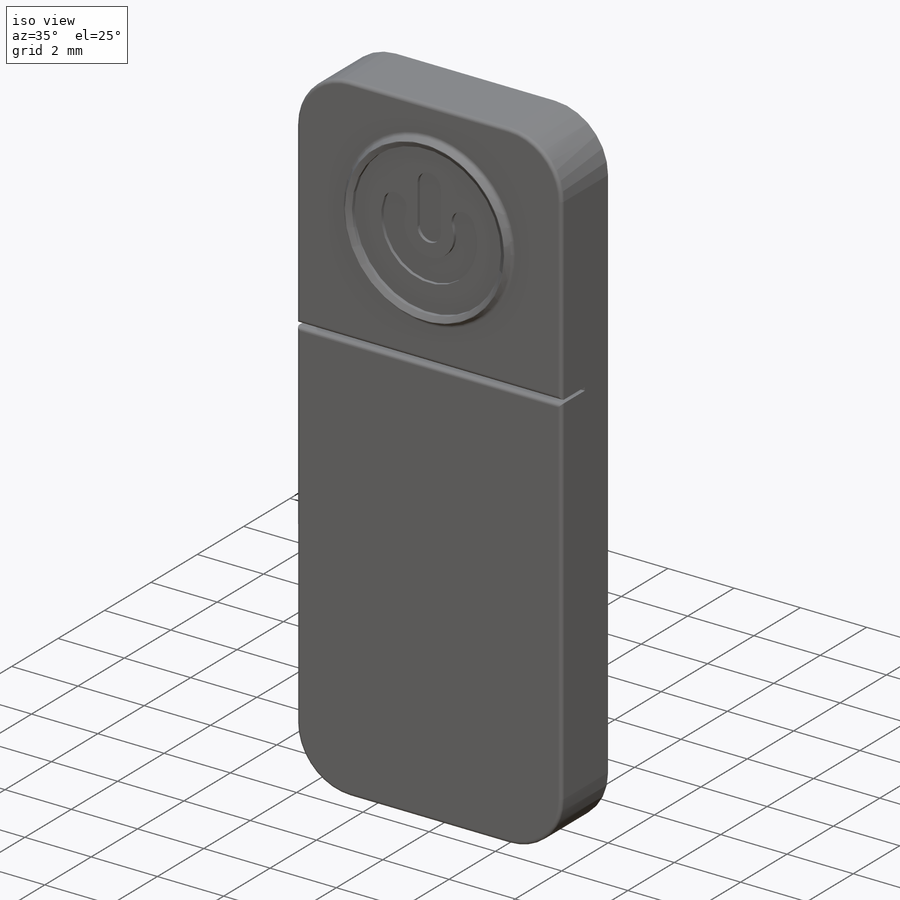
[diagram: iso view]
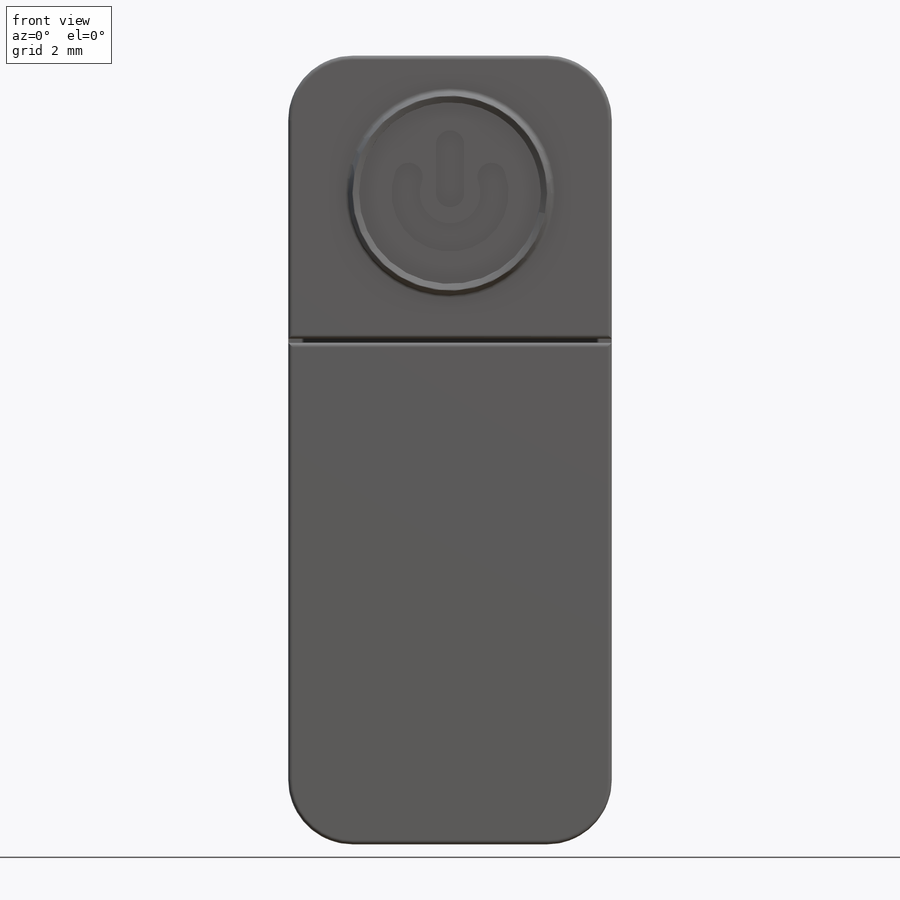
[diagram: front view]
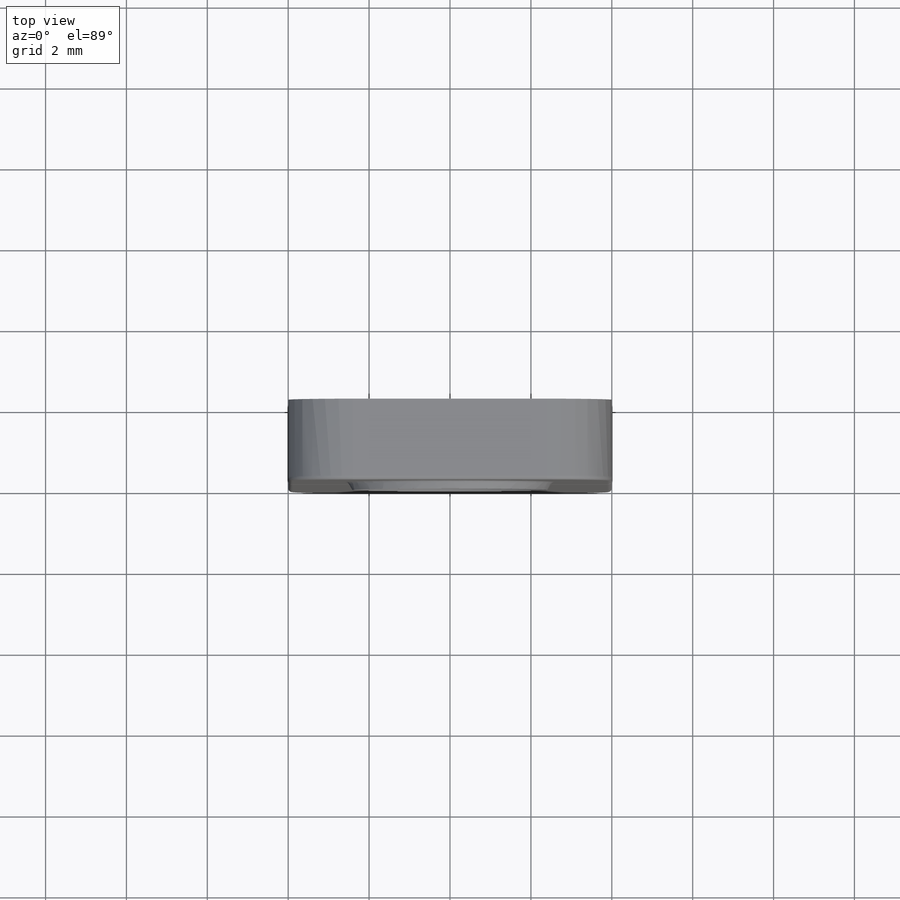
[diagram: top view]
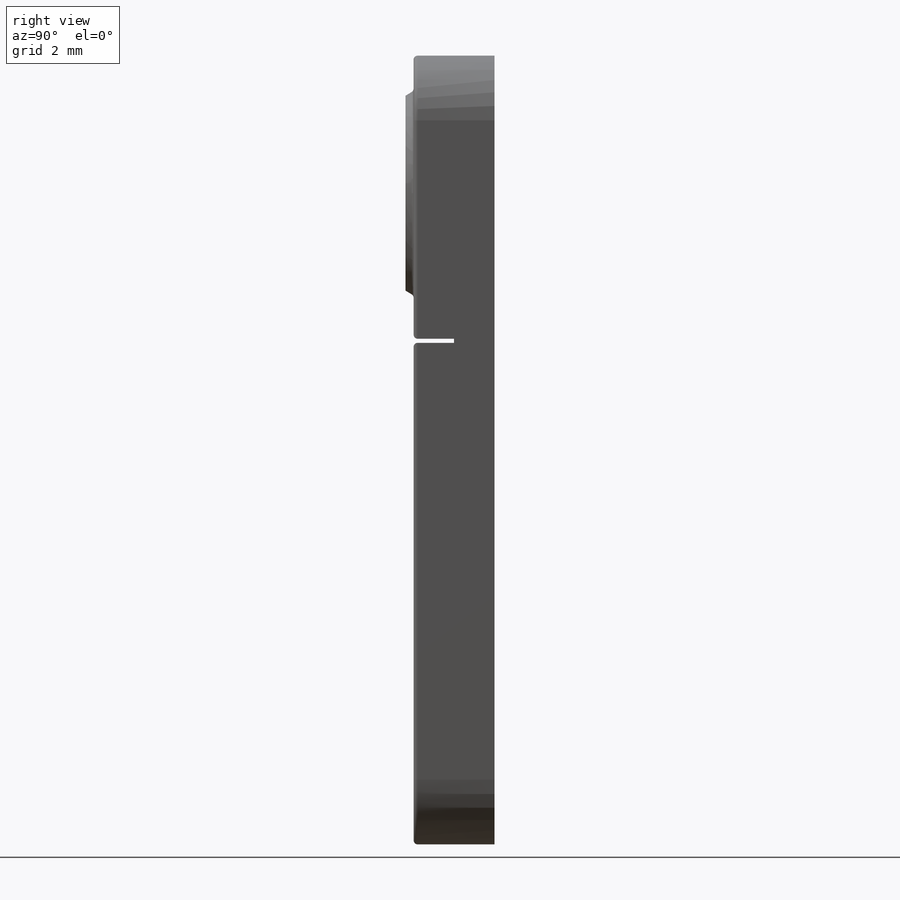
[diagram: right view]
SOLIDWORKS PART (.sldprt)
format: sldprt  version: not decoded by parser v0  size: 251,904 bytes
history: native  units: mm
features: sketch x4, extrude x2, fillet x2, cut_extrude x2, material x1, chamfer x1 (+11 scaffold rows collapsed)
feature tree (23):
  scaffold x11  (default folders/planes/origin — collapsed)
  material  "Material <not specified>"
  sketch  "Sketch1"  dims[D1=19.5mm D2=8.0mm]
  extrude  "Boss-Extrude1"  Depth=2mm
  fillet  "Fillet1"  Radius=1.6mm
  sketch  "Sketch3"  dims[c1.D2=0.35mm c1.D3=1.1mm c1.D6=0.35mm c1.D1=4.0mm c1.D4=2.2mm c1.D5=3.4mm c2.D6=3.0mm]
  cut_extrude  "Cut-Extrude1"  Depth=0.1mm
  sketch  "Sketch4"  dims[D1=5.0mm D2=4.5mm]
  extrude  "Boss-Extrude2"  Depth=0.2mm
  chamfer  "Chamfer1"  Distance=0.15mm Angle=30deg
  sketch  "Sketch5"  dims[D1=0.1mm D2=7.0mm]
  cut_extrude  "Cut-Extrude2"  Depth=1mm
  fillet  "Fillet2"  Radius=0.1mm
decode coverage: 11 of 11 modeling features carry decoded parameters
note: suppression state not decoded; provenance and decode notes live in map.json
